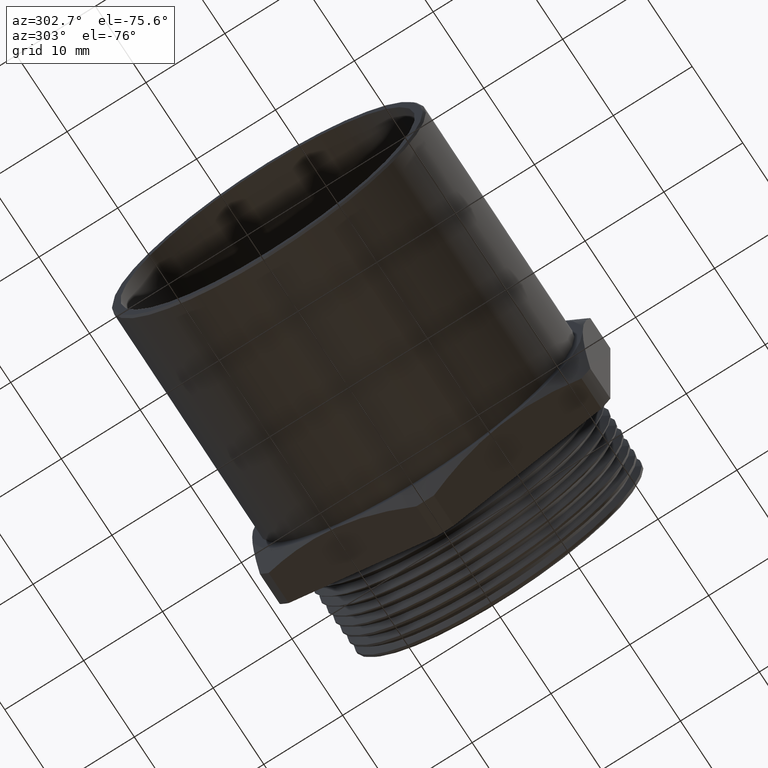
[diagram: clean part render]
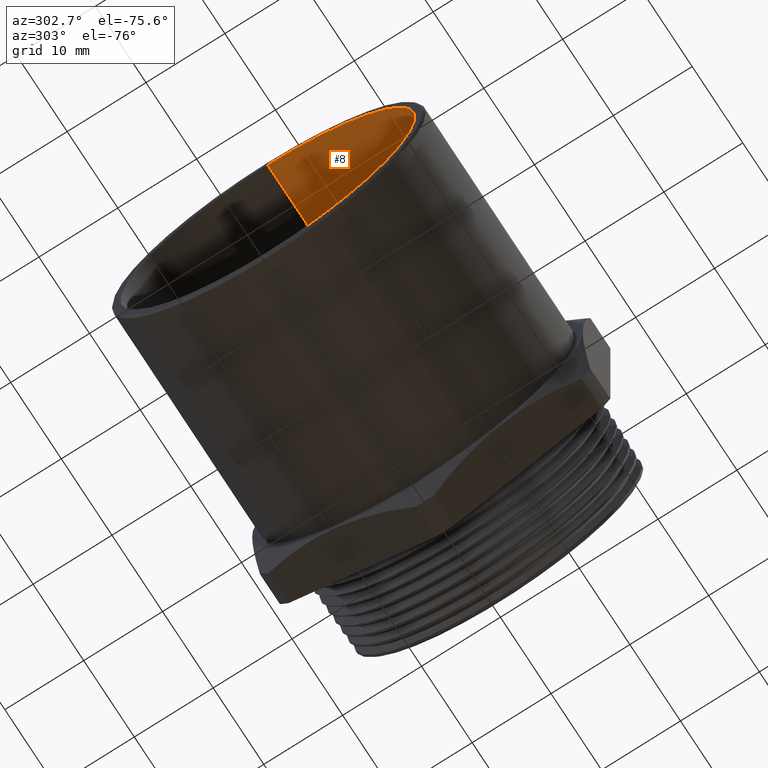
[diagram: same view with one face highlighted and labeled with its STEP entity id]
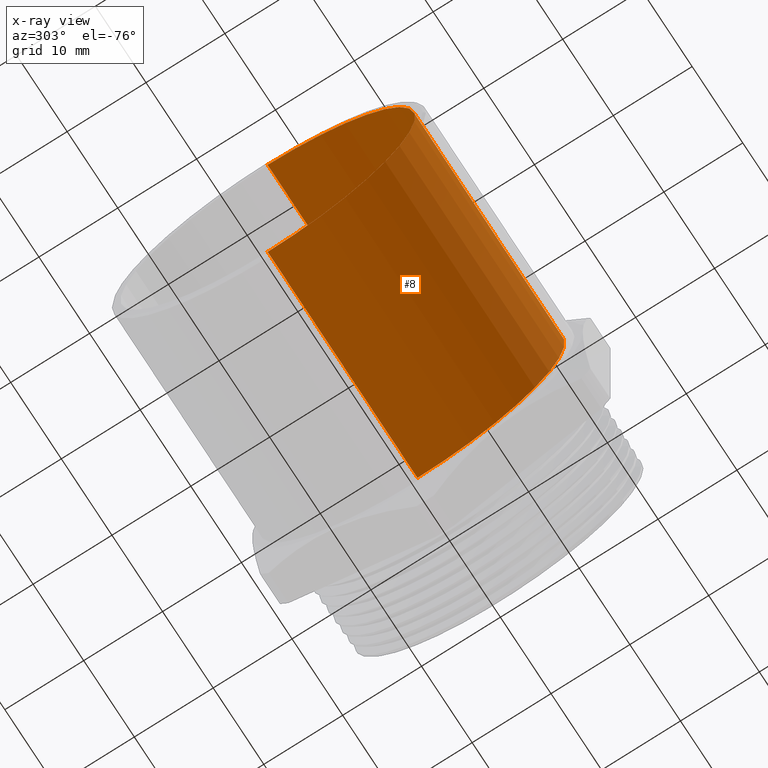
[diagram: x-ray of the same camera — body ghosted, the highlighted face saturated]
A machine part, auxiliary view. The second image highlights one B-rep face of the part: STEP entity #8.
The next image is the same camera in x-ray: the body ghosted, the highlighted face saturated — about 0% of this face is hidden behind the body in this view.
In plain terms, the highlighted cylindrical surface (partial cylindrical patch) has radius 18.669 mm, axis along (-1, 0, 0).
Its self-contained STEP definition (entity closure, byte-faithful):
#6 = EDGE_LOOP ( 'NONE', ( #2669, #2671, #2664, #2660 ) ) ;
#8 = ADVANCED_FACE ( 'NONE', ( #874 ), #873, .F. ) ;
#59 = VERTEX_POINT ( 'NONE', #966 ) ;
#869 = DIRECTION ( 'NONE',  ( 0.0000000000000000000, 0.0000000000000000000, 1.000000000000000000 ) ) ;
#870 = DIRECTION ( 'NONE',  ( -1.000000000000000000, 0.0000000000000000000, 0.0000000000000000000 ) ) ;
#871 = CARTESIAN_POINT ( 'NONE',  ( -0.5911096051061856000, 0.0000000000000000000, 0.0000000000000000000 ) ) ;
#872 = AXIS2_PLACEMENT_3D ( 'NONE', #871, #870, #869 ) ;
#873 = CYLINDRICAL_SURFACE ( 'NONE', #872, 0.7349999999999999900 ) ;
#874 = FACE_OUTER_BOUND ( 'NONE', #6, .T. ) ;
#966 = CARTESIAN_POINT ( 'NONE',  ( -0.6449999999999998000, 9.001153973733045900E-017, -0.7349999999999999900 ) ) ;
#2528 = CARTESIAN_POINT ( 'NONE',  ( -1.810000000000000100, 9.001153973733045900E-017, -0.7349999999999999900 ) ) ;
#2529 = DIRECTION ( 'NONE',  ( -1.000000000000000000, 0.0000000000000000000, 0.0000000000000000000 ) ) ;
#2530 = VECTOR ( 'NONE', #2529, 39.37007874015748100 ) ;
#2531 = CARTESIAN_POINT ( 'NONE',  ( -0.5911096051061856000, 9.001153973733045900E-017, -0.7349999999999999900 ) ) ;
#2532 = LINE ( 'NONE', #2531, #2530 ) ;
#2575 = CARTESIAN_POINT ( 'NONE',  ( -1.810000000000000100, 0.0000000000000000000, 0.7349999999999999900 ) ) ;
#2576 = DIRECTION ( 'NONE',  ( -1.000000000000000000, 0.0000000000000000000, 0.0000000000000000000 ) ) ;
#2577 = VECTOR ( 'NONE', #2576, 39.37007874015748100 ) ;
#2578 = CARTESIAN_POINT ( 'NONE',  ( -0.5911096051061856000, 0.0000000000000000000, 0.7349999999999999900 ) ) ;
#2579 = LINE ( 'NONE', #2578, #2577 ) ;
#2580 = DIRECTION ( 'NONE',  ( 0.0000000000000000000, 0.0000000000000000000, 1.000000000000000000 ) ) ;
#2581 = DIRECTION ( 'NONE',  ( -1.000000000000000000, 0.0000000000000000000, 0.0000000000000000000 ) ) ;
#2582 = CARTESIAN_POINT ( 'NONE',  ( -0.6449999999999998000, 0.0000000000000000000, 0.0000000000000000000 ) ) ;
#2583 = AXIS2_PLACEMENT_3D ( 'NONE', #2582, #2581, #2580 ) ;
#2584 = CIRCLE ( 'NONE', #2583, 0.7349999999999999900 ) ;
#2585 = CARTESIAN_POINT ( 'NONE',  ( -0.6449999999999998000, 0.0000000000000000000, 0.7349999999999999900 ) ) ;
#2586 = DIRECTION ( 'NONE',  ( 0.0000000000000000000, 0.0000000000000000000, 1.000000000000000000 ) ) ;
#2587 = DIRECTION ( 'NONE',  ( -1.000000000000000000, 0.0000000000000000000, 0.0000000000000000000 ) ) ;
#2588 = CARTESIAN_POINT ( 'NONE',  ( -1.810000000000000100, 0.0000000000000000000, 0.0000000000000000000 ) ) ;
#2589 = AXIS2_PLACEMENT_3D ( 'NONE', #2588, #2587, #2586 ) ;
#2590 = CIRCLE ( 'NONE', #2589, 0.7349999999999999900 ) ;
#2660 = ORIENTED_EDGE ( 'NONE', *, *, #2670, .F. ) ;
#2662 = EDGE_CURVE ( 'NONE', #59, #2663, #2532, .T. ) ;
#2663 = VERTEX_POINT ( 'NONE', #2528 ) ;
#2664 = ORIENTED_EDGE ( 'NONE', *, *, #2665, .T. ) ;
#2665 = EDGE_CURVE ( 'NONE', #2663, #2672, #2590, .T. ) ;
#2666 = VERTEX_POINT ( 'NONE', #2585 ) ;
#2667 = EDGE_CURVE ( 'NONE', #59, #2666, #2584, .T. ) ;
#2669 = ORIENTED_EDGE ( 'NONE', *, *, #2667, .F. ) ;
#2670 = EDGE_CURVE ( 'NONE', #2666, #2672, #2579, .T. ) ;
#2671 = ORIENTED_EDGE ( 'NONE', *, *, #2662, .T. ) ;
#2672 = VERTEX_POINT ( 'NONE', #2575 ) ;